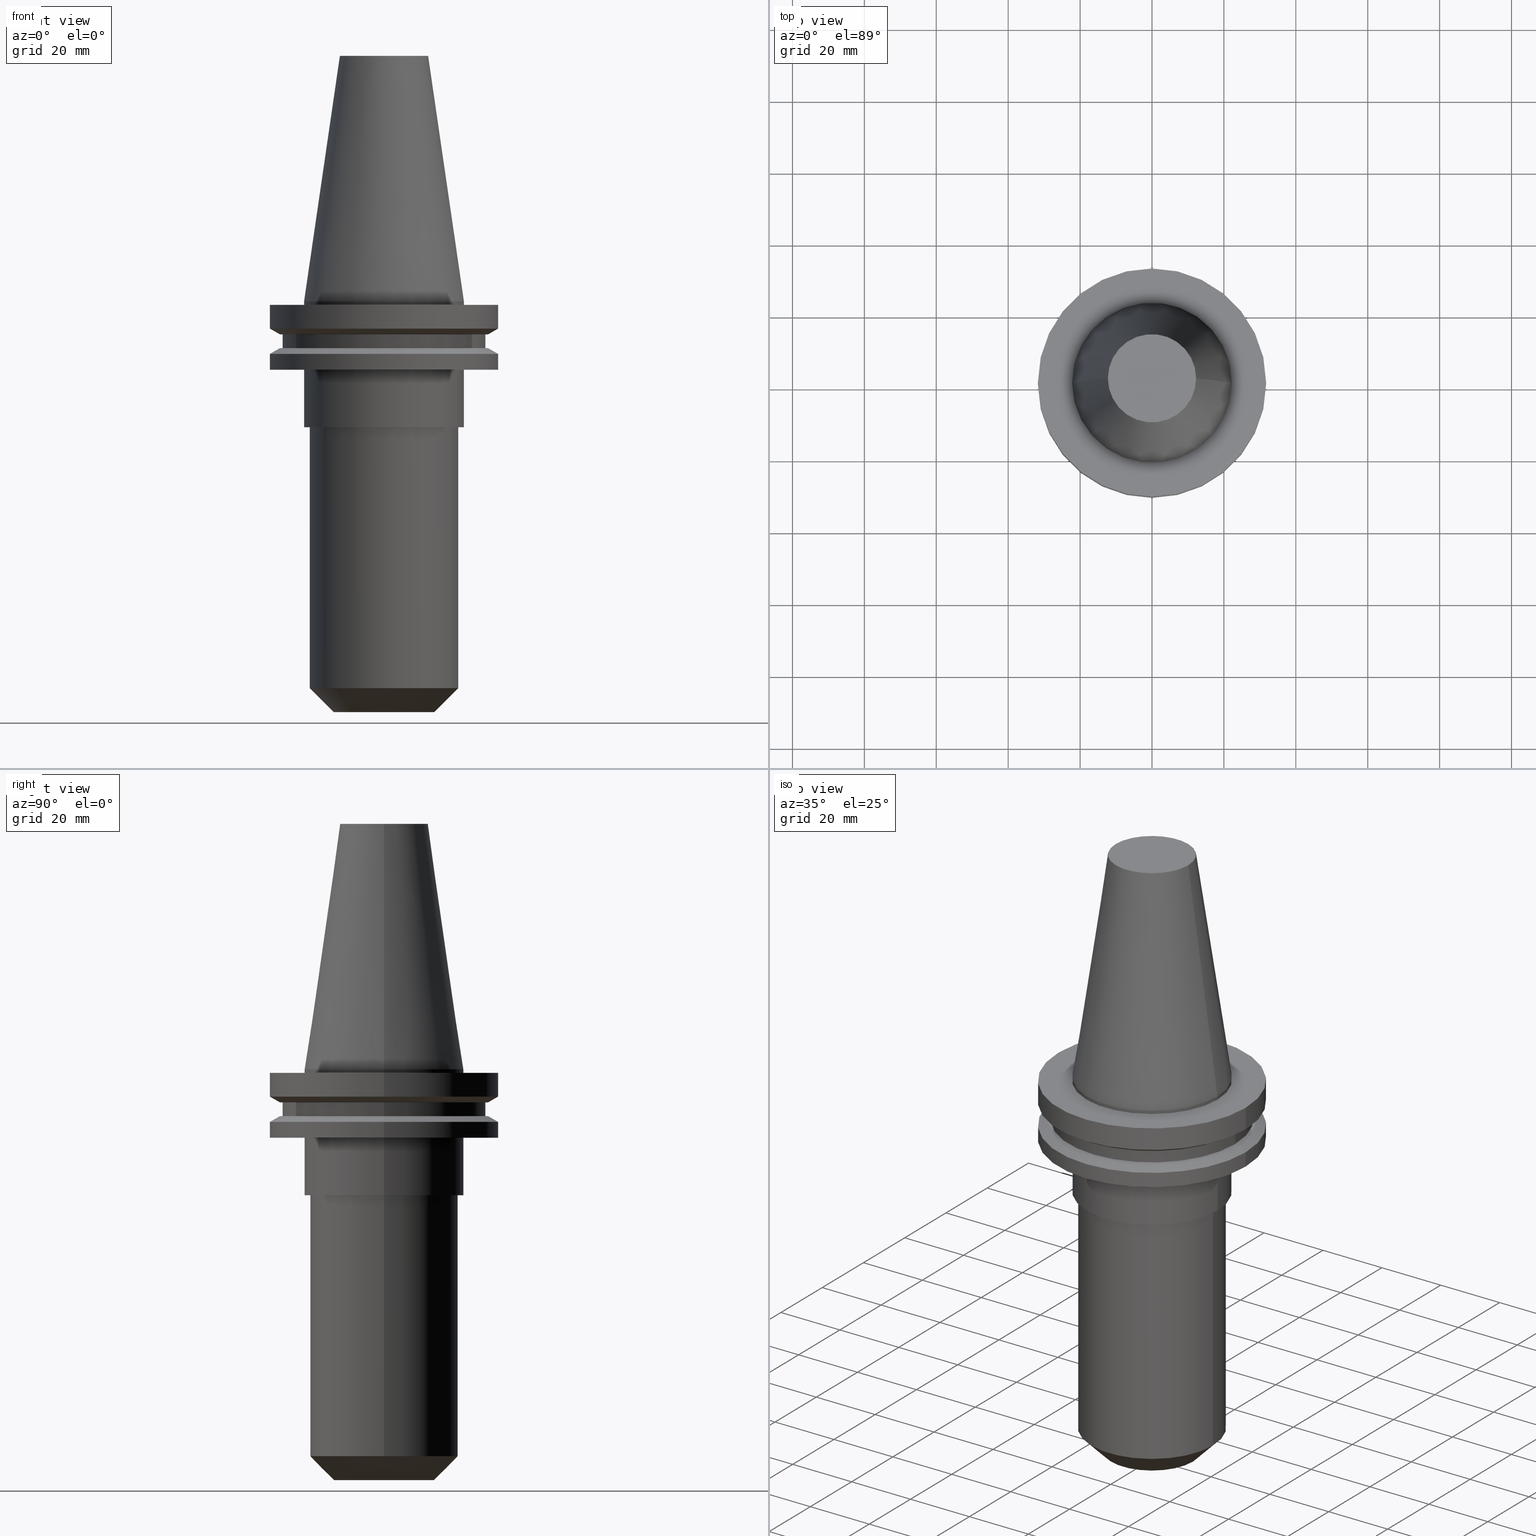
[diagram: canonical four-view strip — front | top / right | iso, engineering-drawing reading convention]
A machine part, canonical four-view strip (front | top / right | iso — engineering-drawing reading convention). The complete STEP part file that produces these views, byte-faithful:
ISO-10303-21;
HEADER;
FILE_DESCRIPTION (( 'STEP AP203' ),
    '1' );
FILE_NAME ('BCV40-EM_625-4_5.STEP',
    '2022-02-23T14:49:10',
    ( '' ),
    ( '' ),
    'SwSTEP 2.0',
    'SolidWorks 2021',
    '' );
FILE_SCHEMA (( 'CONFIG_CONTROL_DESIGN' ));
ENDSEC;

DATA;
#1 = DIRECTION ( 'NONE',  ( 0.000000000000000000, -0.000000000000000000, 1.000000000000000000 ) ) ;
#2 = CARTESIAN_POINT ( 'NONE',  ( 0.000000000000000000, 31.74999999999999289, -19.04999999999999716 ) ) ;
#3 = ORIENTED_EDGE ( 'NONE', *, *, #281, .F. ) ;
#4 = APPROVAL ( #682, 'UNSPECIFIED' ) ;
#5 = CARTESIAN_POINT ( 'NONE',  ( -28.17999999999999972, 3.451054679997241634E-15, 68.25000000000000000 ) ) ;
#6 = ORIENTED_EDGE ( 'NONE', *, *, #163, .T. ) ;
#7 = EDGE_CURVE ( 'NONE', #409, #34, #39, .T. ) ;
#8 = CIRCLE ( 'NONE', #165, 28.17999999999999972 ) ;
#9 = CIRCLE ( 'NONE', #568, 12.27178102086201150 ) ;
#10 = PLANE ( 'NONE',  #322 ) ;
#11 = ORIENTED_EDGE ( 'NONE', *, *, #603, .T. ) ;
#12 = VECTOR ( 'NONE', #33, 999.9999999999998863 ) ;
#13 = ORIENTED_EDGE ( 'NONE', *, *, #573, .F. ) ;
#14 = DIRECTION ( 'NONE',  ( 1.000000000000000000, 0.000000000000000000, 0.000000000000000000 ) ) ;
#15 = EDGE_LOOP ( 'NONE', ( #671, #340, #69, #374 ) ) ;
#16 = SECURITY_CLASSIFICATION_LEVEL ( 'unclassified' ) ;
#17 = EDGE_CURVE ( 'NONE', #758, #222, #126, .T. ) ;
#18 = CARTESIAN_POINT ( 'NONE',  ( 28.97919780457007732, 0.000000000000000000, -9.205000000000005400 ) ) ;
#19 = ORIENTED_EDGE ( 'NONE', *, *, #727, .F. ) ;
#20 = ORIENTED_EDGE ( 'NONE', *, *, #345, .T. ) ;
#21 = LINE ( 'NONE', #239, #385 ) ;
#22 = ORIENTED_EDGE ( 'NONE', *, *, #595, .F. ) ;
#23 = VECTOR ( 'NONE', #351, 1000.000000000000000 ) ;
#24 = PLANE ( 'NONE',  #212 ) ;
#25 = ORIENTED_EDGE ( 'NONE', *, *, #473, .F. ) ;
#26 = VECTOR ( 'NONE', #716, 1000.000000000000000 ) ;
#27 = DATE_AND_TIME ( #66, #805 ) ;
#28 = CARTESIAN_POINT ( 'NONE',  ( 31.74999999999999289, 0.000000000000000000, -19.04999999999999716 ) ) ;
#29 = EDGE_LOOP ( 'NONE', ( #238, #419, #807, #570 ) ) ;
#30 = ADVANCED_FACE ( 'NONE', ( #579 ), #731, .T. ) ;
#31 = DIRECTION ( 'NONE',  ( 1.000000000000000000, 0.000000000000000000, 0.000000000000000000 ) ) ;
#32 = VERTEX_POINT ( 'NONE', #187 ) ;
#33 = DIRECTION ( 'NONE',  ( 0.1443082272672999711, 1.767266086135276757E-17, -0.9895327864921755756 ) ) ;
#34 = VERTEX_POINT ( 'NONE', #451 ) ;
#35 = DIRECTION ( 'NONE',  ( -1.000000000000000000, 0.000000000000000000, -0.000000000000000000 ) ) ;
#36 = DIRECTION ( 'NONE',  ( -0.000000000000000000, -0.000000000000000000, 1.000000000000000000 ) ) ;
#37 = ORIENTED_EDGE ( 'NONE', *, *, #638, .F. ) ;
#38 = FACE_OUTER_BOUND ( 'NONE', #15, .T. ) ;
#39 = CIRCLE ( 'NONE', #498, 12.27178102086201150 ) ;
#40 = CIRCLE ( 'NONE', #526, 22.22500000000000142 ) ;
#41 = CIRCLE ( 'NONE', #501, 22.22500000000000142 ) ;
#42 = ADVANCED_FACE ( 'NONE', ( #782 ), #588, .T. ) ;
#43 = CARTESIAN_POINT ( 'NONE',  ( 31.75000000000000000, 0.000000000000000000, 68.25000000000000000 ) ) ;
#44 = EDGE_LOOP ( 'NONE', ( #11, #803 ) ) ;
#45 = FACE_BOUND ( 'NONE', #699, .T. ) ;
#46 = EDGE_CURVE ( 'NONE', #306, #432, #320, .T. ) ;
#47 = LINE ( 'NONE', #252, #317 ) ;
#48 = DIRECTION ( 'NONE',  ( -0.000000000000000000, -0.000000000000000000, 1.000000000000000000 ) ) ;
#49 = EDGE_CURVE ( 'NONE', #409, #300, #597, .T. ) ;
#50 = DIRECTION ( 'NONE',  ( 1.000000000000000000, 0.000000000000000000, 0.000000000000000000 ) ) ;
#51 = CARTESIAN_POINT ( 'NONE',  ( 0.000000000000000000, 0.000000000000000000, 0.000000000000000000 ) ) ;
#52 = DIRECTION ( 'NONE',  ( -0.1443082272672999711, 0.000000000000000000, -0.9895327864921755756 ) ) ;
#53 = CARTESIAN_POINT ( 'NONE',  ( -12.27178102086201150, 0.000000000000000000, 68.25000000000000000 ) ) ;
#54 = AXIS2_PLACEMENT_3D ( 'NONE', #527, #1, #334 ) ;
#55 = CIRCLE ( 'NONE', #567, 7.939999999999999503 ) ;
#56 = DIRECTION ( 'NONE',  ( -0.000000000000000000, -0.000000000000000000, 1.000000000000000000 ) ) ;
#57 = CARTESIAN_POINT ( 'NONE',  ( 0.000000000000000000, 0.000000000000000000, -13.05499999999999794 ) ) ;
#58 = DIRECTION ( 'NONE',  ( -0.000000000000000000, -0.000000000000000000, 1.000000000000000000 ) ) ;
#59 = EDGE_CURVE ( 'NONE', #766, #439, #444, .T. ) ;
#60 = DIRECTION ( 'NONE',  ( 1.000000000000000000, 0.000000000000000000, 0.000000000000000000 ) ) ;
#61 = FACE_OUTER_BOUND ( 'NONE', #813, .T. ) ;
#62 = EDGE_CURVE ( 'NONE', #475, #642, #55, .T. ) ;
#63 = DIRECTION ( 'NONE',  ( 0.000000000000000000, -0.000000000000000000, 1.000000000000000000 ) ) ;
#64 = CARTESIAN_POINT ( 'NONE',  ( 0.000000000000000000, 0.000000000000000000, 0.000000000000000000 ) ) ;
#65 = AXIS2_PLACEMENT_3D ( 'NONE', #715, #837, #645 ) ;
#66 = CALENDAR_DATE ( 2022, 23, 2 ) ;
#67 = PLANE ( 'NONE',  #54 ) ;
#68 = LINE ( 'NONE', #673, #599 ) ;
#69 = ORIENTED_EDGE ( 'NONE', *, *, #178, .F. ) ;
#70 = EDGE_CURVE ( 'NONE', #230, #169, #776, .T. ) ;
#71 = DIRECTION ( 'NONE',  ( 1.000000000000000000, 0.000000000000000000, 0.000000000000000000 ) ) ;
#72 = EDGE_LOOP ( 'NONE', ( #676, #430, #706, #25 ) ) ;
#73 = ORIENTED_EDGE ( 'NONE', *, *, #329, .T. ) ;
#74 = DIRECTION ( 'NONE',  ( 1.000000000000000000, 0.000000000000000000, 0.000000000000000000 ) ) ;
#75 = ORIENTED_EDGE ( 'NONE', *, *, #114, .F. ) ;
#76 = ORIENTED_EDGE ( 'NONE', *, *, #415, .F. ) ;
#77 = VECTOR ( 'NONE', #52, 999.9999999999998863 ) ;
#78 = VECTOR ( 'NONE', #403, 1000.000000000000000 ) ;
#79 = DIRECTION ( 'NONE',  ( -0.000000000000000000, -0.000000000000000000, 1.000000000000000000 ) ) ;
#80 = AXIS2_PLACEMENT_3D ( 'NONE', #823, #752, #359 ) ;
#81 = ADVANCED_FACE ( 'NONE', ( #771 ), #720, .F. ) ;
#82 = ADVANCED_BREP_SHAPE_REPRESENTATION ( 'BCV40-EM_625-4_5', ( #220, #523 ), #672 ) ;
#83 = FACE_OUTER_BOUND ( 'NONE', #360, .T. ) ;
#84 = ORIENTED_EDGE ( 'NONE', *, *, #801, .F. ) ;
#85 = APPROVAL_DATE_TIME ( #90, #4 ) ;
#86 = PRODUCT_DEFINITION_SHAPE ( 'NONE', 'NONE',  #820 ) ;
#87 = DIRECTION ( 'NONE',  ( -0.000000000000000000, -0.000000000000000000, 1.000000000000000000 ) ) ;
#88 = ORIENTED_EDGE ( 'NONE', *, *, #321, .F. ) ;
#89 = CARTESIAN_POINT ( 'NONE',  ( 0.000000000000000000, 0.000000000000000000, 68.25000000000000000 ) ) ;
#90 = DATE_AND_TIME ( #557, #442 ) ;
#91 = EDGE_CURVE ( 'NONE', #166, #291, #675, .T. ) ;
#92 = DIRECTION ( 'NONE',  ( 1.000000000000000000, 0.000000000000000000, 0.000000000000000000 ) ) ;
#93 = ORIENTED_EDGE ( 'NONE', *, *, #603, .F. ) ;
#94 = AXIS2_PLACEMENT_3D ( 'NONE', #89, #508, #173 ) ;
#95 = CARTESIAN_POINT ( 'NONE',  ( -31.75000000000000000, 3.888253587292846476E-15, 68.25000000000000000 ) ) ;
#96 = ORIENTED_EDGE ( 'NONE', *, *, #533, .F. ) ;
#97 = AXIS2_PLACEMENT_3D ( 'NONE', #693, #357, #31 ) ;
#98 = CARTESIAN_POINT ( 'NONE',  ( 0.000000000000000000, 0.000000000000000000, -9.205000000000005400 ) ) ;
#99 = ORIENTED_EDGE ( 'NONE', *, *, #625, .T. ) ;
#100 = CYLINDRICAL_SURFACE ( 'NONE', #333, 20.63749999999999929 ) ;
#101 = ORIENTED_EDGE ( 'NONE', *, *, #91, .T. ) ;
#102 = CYLINDRICAL_SURFACE ( 'NONE', #342, 28.17999999999999972 ) ;
#103 = ORIENTED_EDGE ( 'NONE', *, *, #91, .F. ) ;
#104 = DIRECTION ( 'NONE',  ( -0.8660254037844389297, 1.060575238724907285E-16, 0.4999999999999995004 ) ) ;
#105 = ORIENTED_EDGE ( 'NONE', *, *, #415, .T. ) ;
#106 = EDGE_CURVE ( 'NONE', #538, #738, #112, .T. ) ;
#107 = CC_DESIGN_APPROVAL ( #848, ( #607 ) ) ;
#108 = DIRECTION ( 'NONE',  ( 1.000000000000000000, 0.000000000000000000, 0.000000000000000000 ) ) ;
#109 = ORIENTED_EDGE ( 'NONE', *, *, #178, .T. ) ;
#110 = DIRECTION ( 'NONE',  ( -0.000000000000000000, -0.000000000000000000, 1.000000000000000000 ) ) ;
#111 = EDGE_LOOP ( 'NONE', ( #175, #75 ) ) ;
#112 = CIRCLE ( 'NONE', #759, 28.97919780457008088 ) ;
#113 = AXIS2_PLACEMENT_3D ( 'NONE', #593, #851, #264 ) ;
#114 = EDGE_CURVE ( 'NONE', #222, #758, #305, .T. ) ;
#115 = APPROVAL_ROLE ( '' ) ;
#116 = ORIENTED_EDGE ( 'NONE', *, *, #736, .F. ) ;
#117 = DIRECTION ( 'NONE',  ( 1.000000000000000000, 0.000000000000000000, 0.000000000000000000 ) ) ;
#118 = EDGE_LOOP ( 'NONE', ( #521, #22 ) ) ;
#119 = CARTESIAN_POINT ( 'NONE',  ( 31.75000000000000000, 0.000000000000000000, 68.25000000000000000 ) ) ;
#120 = DIRECTION ( 'NONE',  ( -1.000000000000000000, 0.000000000000000000, -0.000000000000000000 ) ) ;
#121 = DIRECTION ( 'NONE',  ( 0.000000000000000000, -0.000000000000000000, 1.000000000000000000 ) ) ;
#122 = DIRECTION ( 'NONE',  ( -0.000000000000000000, -0.000000000000000000, 1.000000000000000000 ) ) ;
#123 = DIRECTION ( 'NONE',  ( 1.000000000000000000, 0.000000000000000000, 0.000000000000000000 ) ) ;
#124 = ADVANCED_FACE ( 'NONE', ( #202 ), #462, .T. ) ;
#125 = CARTESIAN_POINT ( 'NONE',  ( -28.17999999999999972, 3.451054679997241634E-15, -13.05499999999999794 ) ) ;
#126 = CIRCLE ( 'NONE', #65, 22.22499999999999787 ) ;
#127 = CIRCLE ( 'NONE', #243, 31.75000000000000000 ) ;
#128 = PRODUCT_RELATED_PRODUCT_CATEGORY ( 'detail', '', ( #493 ) ) ;
#129 =( NAMED_UNIT ( * ) SI_UNIT ( $, .STERADIAN. ) SOLID_ANGLE_UNIT ( ) );
#130 = ORIENTED_EDGE ( 'NONE', *, *, #726, .F. ) ;
#131 = DIRECTION ( 'NONE',  ( 1.000000000000000000, 0.000000000000000000, 0.000000000000000000 ) ) ;
#132 = DIRECTION ( 'NONE',  ( -0.000000000000000000, -0.000000000000000000, 1.000000000000000000 ) ) ;
#133 = DIRECTION ( 'NONE',  ( 1.000000000000000000, 0.000000000000000000, 0.000000000000000000 ) ) ;
#134 = CARTESIAN_POINT ( 'NONE',  ( 22.22500000000000142, 2.721777511104992849E-15, 0.000000000000000000 ) ) ;
#135 = DIRECTION ( 'NONE',  ( 0.000000000000000000, 0.000000000000000000, -1.000000000000000000 ) ) ;
#136 = VECTOR ( 'NONE', #56, 1000.000000000000000 ) ;
#137 = APPROVAL_PERSON_ORGANIZATION ( #687, #848, #804 ) ;
#138 = ADVANCED_FACE ( 'NONE', ( #389 ), #709, .F. ) ;
#139 = CIRCLE ( 'NONE', #368, 22.22500000000000142 ) ;
#140 = ADVANCED_FACE ( 'NONE', ( #267, #790 ), #67, .F. ) ;
#141 = CARTESIAN_POINT ( 'NONE',  ( -7.939999999999999503, 9.723695585229985121E-16, -35.04999999999999716 ) ) ;
#142 = EDGE_LOOP ( 'NONE', ( #793, #20, #491, #733 ) ) ;
#143 = CARTESIAN_POINT ( 'NONE',  ( -20.63749999999999929, 2.527364831740350249E-15, 0.000000000000000000 ) ) ;
#144 = LINE ( 'NONE', #143, #78 ) ;
#145 = CC_DESIGN_DATE_AND_TIME_ASSIGNMENT ( #464, #811, ( #820 ) ) ;
#146 = ORIENTED_EDGE ( 'NONE', *, *, #303, .F. ) ;
#147 = ORGANIZATION ( 'UNSPECIFIED', 'UNSPECIFIED', '' ) ;
#148 = ORIENTED_EDGE ( 'NONE', *, *, #500, .F. ) ;
#149 = AXIS2_PLACEMENT_3D ( 'NONE', #188, #519, #710 ) ;
#150 = DIRECTION ( 'NONE',  ( -1.000000000000000000, 0.000000000000000000, 0.000000000000000000 ) ) ;
#151 = ORIENTED_EDGE ( 'NONE', *, *, #480, .F. ) ;
#152 = AXIS2_PLACEMENT_3D ( 'NONE', #284, #812, #108 ) ;
#153 = EDGE_LOOP ( 'NONE', ( #469, #545 ) ) ;
#154 = CALENDAR_DATE ( 2022, 23, 2 ) ;
#155 = CARTESIAN_POINT ( 'NONE',  ( 7.939999999999999503, 0.000000000000000000, -35.04999999999999716 ) ) ;
#156 = ORIENTED_EDGE ( 'NONE', *, *, #795, .F. ) ;
#157 = DIRECTION ( 'NONE',  ( -0.000000000000000000, -0.000000000000000000, 1.000000000000000000 ) ) ;
#158 = DIRECTION ( 'NONE',  ( 1.000000000000000000, 0.000000000000000000, 0.000000000000000000 ) ) ;
#159 = ORIENTED_EDGE ( 'NONE', *, *, #49, .F. ) ;
#160 = CARTESIAN_POINT ( 'NONE',  ( 28.17999999999999972, 0.000000000000000000, -13.05499999999999794 ) ) ;
#161 = ORIENTED_EDGE ( 'NONE', *, *, #787, .T. ) ;
#162 = AXIS2_PLACEMENT_3D ( 'NONE', #180, #781, #836 ) ;
#163 = EDGE_CURVE ( 'NONE', #704, #575, #744, .T. ) ;
#164 = LINE ( 'NONE', #700, #640 ) ;
#165 = AXIS2_PLACEMENT_3D ( 'NONE', #814, #754, #425 ) ;
#166 = VERTEX_POINT ( 'NONE', #393 ) ;
#167 = AXIS2_PLACEMENT_3D ( 'NONE', #64, #332, #262 ) ;
#168 = DIRECTION ( 'NONE',  ( 1.000000000000000000, 0.000000000000000000, 0.000000000000000000 ) ) ;
#169 = VERTEX_POINT ( 'NONE', #134 ) ;
#170 = AXIS2_PLACEMENT_3D ( 'NONE', #325, #581, #452 ) ;
#171 = CARTESIAN_POINT ( 'NONE',  ( 0.000000000000000000, 0.000000000000000000, -1.000000000000000888 ) ) ;
#172 = ORIENTED_EDGE ( 'NONE', *, *, #657, .F. ) ;
#173 = DIRECTION ( 'NONE',  ( 1.000000000000000000, 0.000000000000000000, 0.000000000000000000 ) ) ;
#174 = DIRECTION ( 'NONE',  ( -0.000000000000000000, -0.000000000000000000, 1.000000000000000000 ) ) ;
#175 = ORIENTED_EDGE ( 'NONE', *, *, #17, .F. ) ;
#176 = EDGE_CURVE ( 'NONE', #414, #439, #662, .T. ) ;
#177 = CARTESIAN_POINT ( 'NONE',  ( -22.22499999999999787, 2.721777511104992454E-15, -35.04999999999999716 ) ) ;
#178 = EDGE_CURVE ( 'NONE', #169, #300, #139, .T. ) ;
#179 = CC_DESIGN_APPROVAL ( #4, ( #196 ) ) ;
#180 = CARTESIAN_POINT ( 'NONE',  ( 0.000000000000000000, 0.000000000000000000, -114.2999999999999972 ) ) ;
#181 = DIRECTION ( 'NONE',  ( 1.000000000000000000, 0.000000000000000000, 0.000000000000000000 ) ) ;
#182 = DIRECTION ( 'NONE',  ( -0.000000000000000000, -0.000000000000000000, 1.000000000000000000 ) ) ;
#183 = VERTEX_POINT ( 'NONE', #301 ) ;
#184 = AXIS2_PLACEMENT_3D ( 'NONE', #381, #524, #786 ) ;
#185 = AXIS2_PLACEMENT_3D ( 'NONE', #214, #799, #474 ) ;
#186 = CARTESIAN_POINT ( 'NONE',  ( 0.000000000000000000, 0.000000000000000000, 68.25000000000000000 ) ) ;
#187 = CARTESIAN_POINT ( 'NONE',  ( -28.17999999999999972, 3.451054679997241634E-15, -9.204999999999991189 ) ) ;
#188 = CARTESIAN_POINT ( 'NONE',  ( 0.000000000000000000, 0.000000000000000000, -14.65472339340266572 ) ) ;
#189 = ADVANCED_FACE ( 'NONE', ( #643 ), #100, .T. ) ;
#190 = CARTESIAN_POINT ( 'NONE',  ( -22.22500000000000142, 2.721777511104992849E-15, 68.25000000000000000 ) ) ;
#191 = DIRECTION ( 'NONE',  ( -0.000000000000000000, -0.000000000000000000, 1.000000000000000000 ) ) ;
#192 = CARTESIAN_POINT ( 'NONE',  ( -31.74999999999999289, 3.888253587292845687E-15, -19.04999999999999716 ) ) ;
#193 = CYLINDRICAL_SURFACE ( 'NONE', #455, 22.22500000000000142 ) ;
#194 = CARTESIAN_POINT ( 'NONE',  ( 0.000000000000000000, 0.000000000000000000, -13.05499999999999794 ) ) ;
#195 = EDGE_CURVE ( 'NONE', #670, #414, #224, .T. ) ;
#196 = SECURITY_CLASSIFICATION ( '', '', #16 ) ;
#197 = CYLINDRICAL_SURFACE ( 'NONE', #623, 22.22500000000000142 ) ;
#198 = VECTOR ( 'NONE', #514, 1000.000000000000000 ) ;
#199 = VECTOR ( 'NONE', #391, 1000.000000000000000 ) ;
#200 = AXIS2_PLACEMENT_3D ( 'NONE', #245, #505, #158 ) ;
#201 = DIRECTION ( 'NONE',  ( -1.000000000000000000, 0.000000000000000000, -0.000000000000000000 ) ) ;
#202 = FACE_OUTER_BOUND ( 'NONE', #211, .T. ) ;
#203 = DIRECTION ( 'NONE',  ( 0.7071067811865479058, 0.000000000000000000, 0.7071067811865471286 ) ) ;
#204 = EDGE_CURVE ( 'NONE', #738, #538, #808, .T. ) ;
#205 = PERSON_AND_ORGANIZATION_ROLE ( 'creator' ) ;
#206 = CARTESIAN_POINT ( 'NONE',  ( 0.000000000000000000, 0.000000000000000000, -9.205000000000005400 ) ) ;
#207 = DIRECTION ( 'NONE',  ( -0.000000000000000000, -0.000000000000000000, 1.000000000000000000 ) ) ;
#208 = EDGE_CURVE ( 'NONE', #575, #232, #487, .T. ) ;
#209 = PERSON_AND_ORGANIZATION ( #547, #147 ) ;
#210 = DIRECTION ( 'NONE',  ( 1.000000000000000000, 0.000000000000000000, 0.000000000000000000 ) ) ;
#211 = EDGE_LOOP ( 'NONE', ( #423, #488, #400, #798 ) ) ;
#212 = AXIS2_PLACEMENT_3D ( 'NONE', #292, #555, #35 ) ;
#213 = AXIS2_PLACEMENT_3D ( 'NONE', #656, #58, #586 ) ;
#214 = CARTESIAN_POINT ( 'NONE',  ( 0.000000000000000000, 0.000000000000000000, -35.04999999999999716 ) ) ;
#215 = ORIENTED_EDGE ( 'NONE', *, *, #106, .F. ) ;
#216 = EDGE_CURVE ( 'NONE', #843, #347, #382, .T. ) ;
#217 = CARTESIAN_POINT ( 'NONE',  ( 0.000000000000000000, 0.000000000000000000, 68.25000000000000000 ) ) ;
#218 = ORIENTED_EDGE ( 'NONE', *, *, #500, .T. ) ;
#219 = CC_DESIGN_PERSON_AND_ORGANIZATION_ASSIGNMENT ( #421, #852, ( #196 ) ) ;
#220 = MANIFOLD_SOLID_BREP ( 'EM', #483 ) ;
#221 = DIRECTION ( 'NONE',  ( -0.000000000000000000, -0.000000000000000000, 1.000000000000000000 ) ) ;
#222 = VERTEX_POINT ( 'NONE', #177 ) ;
#223 = EDGE_CURVE ( 'NONE', #631, #183, #622, .T. ) ;
#224 = CIRCLE ( 'NONE', #663, 31.74999999999999289 ) ;
#225 = AXIS2_PLACEMENT_3D ( 'NONE', #217, #791, #14 ) ;
#226 = DIRECTION ( 'NONE',  ( 1.000000000000000000, 0.000000000000000000, 0.000000000000000000 ) ) ;
#227 = EDGE_LOOP ( 'NONE', ( #172, #404 ) ) ;
#228 = PERSON_AND_ORGANIZATION ( #547, #147 ) ;
#229 = CARTESIAN_POINT ( 'NONE',  ( 20.63749999999999929, 0.000000000000000000, -107.5999999999999943 ) ) ;
#230 = VERTEX_POINT ( 'NONE', #825 ) ;
#231 = LINE ( 'NONE', #95, #840 ) ;
#232 = VERTEX_POINT ( 'NONE', #431 ) ;
#233 = EDGE_CURVE ( 'NONE', #538, #766, #492, .T. ) ;
#234 = DATE_TIME_ROLE ( 'classification_date' ) ;
#235 = DIRECTION ( 'NONE',  ( 1.000000000000000000, 0.000000000000000000, 0.000000000000000000 ) ) ;
#236 = ORIENTED_EDGE ( 'NONE', *, *, #533, .T. ) ;
#237 = PLANE ( 'NONE',  #841 ) ;
#238 = ORIENTED_EDGE ( 'NONE', *, *, #690, .F. ) ;
#239 = CARTESIAN_POINT ( 'NONE',  ( -7.939999999999999503, 9.723695585229985121E-16, 0.000000000000000000 ) ) ;
#240 = ORIENTED_EDGE ( 'NONE', *, *, #625, .F. ) ;
#241 = CIRCLE ( 'NONE', #277, 13.93749999999998046 ) ;
#242 = DIRECTION ( 'NONE',  ( -0.000000000000000000, -0.000000000000000000, 1.000000000000000000 ) ) ;
#243 = AXIS2_PLACEMENT_3D ( 'NONE', #762, #438, #696 ) ;
#244 = EDGE_CURVE ( 'NONE', #232, #681, #255, .T. ) ;
#245 = CARTESIAN_POINT ( 'NONE',  ( 0.000000000000000000, 0.000000000000000000, -35.04999999999999716 ) ) ;
#246 = ORIENTED_EDGE ( 'NONE', *, *, #702, .T. ) ;
#247 = DIRECTION ( 'NONE',  ( 1.000000000000000000, 0.000000000000000000, 0.000000000000000000 ) ) ;
#248 = EDGE_LOOP ( 'NONE', ( #605, #407, #103, #665 ) ) ;
#249 = DIRECTION ( 'NONE',  ( 1.000000000000000000, 0.000000000000000000, 0.000000000000000000 ) ) ;
#250 = ORIENTED_EDGE ( 'NONE', *, *, #838, .F. ) ;
#251 = CARTESIAN_POINT ( 'NONE',  ( 7.939999999999999503, 0.000000000000000000, 0.000000000000000000 ) ) ;
#252 = CARTESIAN_POINT ( 'NONE',  ( 22.22500000000000142, 0.000000000000000000, 68.25000000000000000 ) ) ;
#253 = DIRECTION ( 'NONE',  ( 1.000000000000000000, 0.000000000000000000, 0.000000000000000000 ) ) ;
#254 = DIRECTION ( 'NONE',  ( -0.000000000000000000, -0.000000000000000000, 1.000000000000000000 ) ) ;
#255 = CIRCLE ( 'NONE', #353, 31.75000000000000000 ) ;
#256 = EDGE_CURVE ( 'NONE', #232, #338, #231, .T. ) ;
#257 = CONICAL_SURFACE ( 'NONE', #785, 28.97919780457007732, 1.047197551196598297 ) ;
#258 = ORIENTED_EDGE ( 'NONE', *, *, #480, .T. ) ;
#259 = CARTESIAN_POINT ( 'NONE',  ( -20.63749999999999929, 2.527364831740350249E-15, -35.04999999999999716 ) ) ;
#260 = MECHANICAL_CONTEXT ( 'NONE', #379, 'mechanical' ) ;
#261 = DIRECTION ( 'NONE',  ( 1.000000000000000000, 0.000000000000000000, 0.000000000000000000 ) ) ;
#262 = DIRECTION ( 'NONE',  ( -1.000000000000000000, 0.000000000000000000, 0.000000000000000000 ) ) ;
#263 = CARTESIAN_POINT ( 'NONE',  ( 22.22500000000000142, 0.000000000000000000, 68.25000000000000000 ) ) ;
#264 = DIRECTION ( 'NONE',  ( 1.000000000000000000, 0.000000000000000000, 0.000000000000000000 ) ) ;
#265 = CIRCLE ( 'NONE', #288, 31.74999999999999289 ) ;
#266 = CIRCLE ( 'NONE', #760, 28.17999999999999972 ) ;
#267 = FACE_OUTER_BOUND ( 'NONE', #826, .T. ) ;
#268 = DIRECTION ( 'NONE',  ( -1.000000000000000000, 0.000000000000000000, 0.000000000000000000 ) ) ;
#269 = PERSON_AND_ORGANIZATION_ROLE ( 'creator' ) ;
#270 = DIRECTION ( 'NONE',  ( 1.000000000000000000, 0.000000000000000000, 0.000000000000000000 ) ) ;
#271 = EDGE_LOOP ( 'NONE', ( #148, #73, #324, #692 ) ) ;
#272 = ORIENTED_EDGE ( 'NONE', *, *, #736, .T. ) ;
#273 = CARTESIAN_POINT ( 'NONE',  ( 28.97919780457008088, 3.718590885307660666E-15, -13.05499999999999794 ) ) ;
#274 = ORIENTED_EDGE ( 'NONE', *, *, #233, .T. ) ;
#275 = ADVANCED_FACE ( 'NONE', ( #38 ), #504, .T. ) ;
#276 = AXIS2_PLACEMENT_3D ( 'NONE', #206, #465, #728 ) ;
#277 = AXIS2_PLACEMENT_3D ( 'NONE', #413, #531, #71 ) ;
#278 = AXIS2_PLACEMENT_3D ( 'NONE', #98, #616, #619 ) ;
#279 = DIRECTION ( 'NONE',  ( 0.000000000000000000, -0.000000000000000000, 1.000000000000000000 ) ) ;
#280 = ORIENTED_EDGE ( 'NONE', *, *, #787, .F. ) ;
#281 = EDGE_CURVE ( 'NONE', #32, #336, #470, .T. ) ;
#282 = CARTESIAN_POINT ( 'NONE',  ( 0.000000000000000000, 0.000000000000000000, -19.04999999999999716 ) ) ;
#283 = EDGE_LOOP ( 'NONE', ( #824, #815 ) ) ;
#284 = CARTESIAN_POINT ( 'NONE',  ( 0.000000000000000000, 0.000000000000000000, 0.000000000000000000 ) ) ;
#285 = ORIENTED_EDGE ( 'NONE', *, *, #534, .F. ) ;
#286 = ORIENTED_EDGE ( 'NONE', *, *, #303, .T. ) ;
#287 = AXIS2_PLACEMENT_3D ( 'NONE', #835, #832, #764 ) ;
#288 = AXIS2_PLACEMENT_3D ( 'NONE', #355, #36, #684 ) ;
#289 = DIRECTION ( 'NONE',  ( -0.000000000000000000, -0.000000000000000000, 1.000000000000000000 ) ) ;
#290 = ADVANCED_FACE ( 'NONE', ( #45, #370 ), #24, .F. ) ;
#291 = VERTEX_POINT ( 'NONE', #560 ) ;
#292 = CARTESIAN_POINT ( 'NONE',  ( 0.000000000000000000, 31.75000000000000000, -0.9999999999999995559 ) ) ;
#293 = EDGE_LOOP ( 'NONE', ( #250, #749, #817, #532 ) ) ;
#294 = PERSON_AND_ORGANIZATION ( #547, #147 ) ;
#295 = FACE_OUTER_BOUND ( 'NONE', #753, .T. ) ;
#296 = ORIENTED_EDGE ( 'NONE', *, *, #449, .T. ) ;
#297 = FACE_OUTER_BOUND ( 'NONE', #634, .T. ) ;
#298 = ORIENTED_EDGE ( 'NONE', *, *, #702, .F. ) ;
#299 = CYLINDRICAL_SURFACE ( 'NONE', #80, 7.939999999999999503 ) ;
#300 = VERTEX_POINT ( 'NONE', #627 ) ;
#301 = CARTESIAN_POINT ( 'NONE',  ( -20.63749999999999929, 2.527364831740350249E-15, -107.5999999999999943 ) ) ;
#302 = ORIENTED_EDGE ( 'NONE', *, *, #46, .F. ) ;
#303 = EDGE_CURVE ( 'NONE', #432, #306, #8, .T. ) ;
#304 = CARTESIAN_POINT ( 'NONE',  ( 0.000000000000000000, 0.000000000000000000, -9.204999999999991189 ) ) ;
#305 = CIRCLE ( 'NONE', #784, 22.22499999999999787 ) ;
#306 = VERTEX_POINT ( 'NONE', #160 ) ;
#307 = AXIS2_PLACEMENT_3D ( 'NONE', #468, #544, #337 ) ;
#308 = DIRECTION ( 'NONE',  ( 1.000000000000000000, 0.000000000000000000, 0.000000000000000000 ) ) ;
#309 = CIRCLE ( 'NONE', #460, 7.939999999999999503 ) ;
#310 = APPLICATION_PROTOCOL_DEFINITION ( 'international standard', 'config_control_design', 1994, #712 ) ;
#311 = ORIENTED_EDGE ( 'NONE', *, *, #726, .T. ) ;
#312 = DIRECTION ( 'NONE',  ( 1.000000000000000000, 0.000000000000000000, 0.000000000000000000 ) ) ;
#313 = EDGE_LOOP ( 'NONE', ( #302, #146 ) ) ;
#314 = FACE_BOUND ( 'NONE', #313, .T. ) ;
#315 = DIRECTION ( 'NONE',  ( 1.000000000000000000, 0.000000000000000000, 0.000000000000000000 ) ) ;
#316 = CARTESIAN_POINT ( 'NONE',  ( -31.75000000000000000, 3.888253587292846476E-15, -1.000000000000000888 ) ) ;
#317 = VECTOR ( 'NONE', #775, 1000.000000000000000 ) ;
#318 = DIRECTION ( 'NONE',  ( -0.000000000000000000, -0.000000000000000000, 1.000000000000000000 ) ) ;
#319 = CARTESIAN_POINT ( 'NONE',  ( 28.17999999999999972, 0.000000000000000000, -9.204999999999991189 ) ) ;
#320 = CIRCLE ( 'NONE', #796, 28.17999999999999972 ) ;
#321 = EDGE_CURVE ( 'NONE', #300, #169, #499, .T. ) ;
#322 = AXIS2_PLACEMENT_3D ( 'NONE', #394, #732, #343 ) ;
#323 = DIRECTION ( 'NONE',  ( -0.000000000000000000, -0.000000000000000000, 1.000000000000000000 ) ) ;
#324 = ORIENTED_EDGE ( 'NONE', *, *, #441, .T. ) ;
#325 = CARTESIAN_POINT ( 'NONE',  ( 0.000000000000000000, 0.000000000000000000, 0.000000000000000000 ) ) ;
#326 = CARTESIAN_POINT ( 'NONE',  ( 0.000000000000000000, 0.000000000000000000, -114.3000000000000114 ) ) ;
#327 = FACE_OUTER_BOUND ( 'NONE', #29, .T. ) ;
#328 = ADVANCED_FACE ( 'NONE', ( #297, #818 ), #237, .F. ) ;
#329 = EDGE_CURVE ( 'NONE', #386, #405, #428, .T. ) ;
#330 = CARTESIAN_POINT ( 'NONE',  ( 0.000000000000000000, 0.000000000000000000, -14.65472339340266572 ) ) ;
#331 = APPROVAL_PERSON_ORGANIZATION ( #392, #4, #789 ) ;
#332 = DIRECTION ( 'NONE',  ( 0.000000000000000000, 0.000000000000000000, -1.000000000000000000 ) ) ;
#333 = AXIS2_PLACEMENT_3D ( 'NONE', #757, #707, #767 ) ;
#334 = DIRECTION ( 'NONE',  ( 1.000000000000000000, 0.000000000000000000, 0.000000000000000000 ) ) ;
#335 = FACE_OUTER_BOUND ( 'NONE', #831, .T. ) ;
#336 = VERTEX_POINT ( 'NONE', #319 ) ;
#337 = DIRECTION ( 'NONE',  ( 1.000000000000000000, 0.000000000000000000, 0.000000000000000000 ) ) ;
#338 = VERTEX_POINT ( 'NONE', #316 ) ;
#339 = CARTESIAN_POINT ( 'NONE',  ( 0.000000000000000000, 0.000000000000000000, -1.000000000000000888 ) ) ;
#340 = ORIENTED_EDGE ( 'NONE', *, *, #638, .T. ) ;
#341 = VECTOR ( 'NONE', #802, 1000.000000000000000 ) ;
#342 = AXIS2_PLACEMENT_3D ( 'NONE', #558, #548, #349 ) ;
#343 = DIRECTION ( 'NONE',  ( 1.000000000000000000, 0.000000000000000000, 0.000000000000000000 ) ) ;
#344 = EDGE_LOOP ( 'NONE', ( #448, #258 ) ) ;
#345 = EDGE_CURVE ( 'NONE', #183, #631, #719, .T. ) ;
#346 = DIRECTION ( 'NONE',  ( 1.000000000000000000, 0.000000000000000000, 0.000000000000000000 ) ) ;
#347 = VERTEX_POINT ( 'NONE', #447 ) ;
#348 = ADVANCED_FACE ( 'NONE', ( #772 ), #810, .T. ) ;
#349 = DIRECTION ( 'NONE',  ( 1.000000000000000000, 0.000000000000000000, 0.000000000000000000 ) ) ;
#350 = ORIENTED_EDGE ( 'NONE', *, *, #195, .T. ) ;
#351 = DIRECTION ( 'NONE',  ( 0.8660254037844387076, 1.060575238724906915E-16, -0.4999999999999998890 ) ) ;
#352 = DATE_AND_TIME ( #730, #822 ) ;
#353 = AXIS2_PLACEMENT_3D ( 'NONE', #420, #686, #247 ) ;
#354 = VECTOR ( 'NONE', #604, 1000.000000000000000 ) ;
#355 = CARTESIAN_POINT ( 'NONE',  ( 0.000000000000000000, 0.000000000000000000, -19.04999999999999716 ) ) ;
#356 = EDGE_LOOP ( 'NONE', ( #559, #481 ) ) ;
#357 = DIRECTION ( 'NONE',  ( -0.000000000000000000, -0.000000000000000000, 1.000000000000000000 ) ) ;
#358 = VERTEX_POINT ( 'NONE', #259 ) ;
#359 = DIRECTION ( 'NONE',  ( 1.000000000000000000, 0.000000000000000000, 0.000000000000000000 ) ) ;
#360 = EDGE_LOOP ( 'NONE', ( #741, #399, #161, #19 ) ) ;
#361 = ADVANCED_FACE ( 'NONE', ( #373 ), #384, .T. ) ;
#362 = CARTESIAN_POINT ( 'NONE',  ( 0.000000000000000000, 0.000000000000000000, -114.2999999999999972 ) ) ;
#363 = CARTESIAN_POINT ( 'NONE',  ( 31.75000000000000000, 0.000000000000000000, -1.000000000000000888 ) ) ;
#364 = ORIENTED_EDGE ( 'NONE', *, *, #256, .T. ) ;
#365 = CARTESIAN_POINT ( 'NONE',  ( 0.000000000000000000, 0.000000000000000000, -107.5999999999999943 ) ) ;
#366 = ORIENTED_EDGE ( 'NONE', *, *, #70, .T. ) ;
#367 = CARTESIAN_POINT ( 'NONE',  ( 0.000000000000000000, 0.000000000000000000, -7.605276606597335842 ) ) ;
#368 = AXIS2_PLACEMENT_3D ( 'NONE', #703, #440, #312 ) ;
#369 = ORIENTED_EDGE ( 'NONE', *, *, #233, .F. ) ;
#370 = FACE_OUTER_BOUND ( 'NONE', #44, .T. ) ;
#371 = ADVANCED_FACE ( 'NONE', ( #780 ), #197, .T. ) ;
#372 = DIRECTION ( 'NONE',  ( -0.000000000000000000, -0.000000000000000000, 1.000000000000000000 ) ) ;
#373 = FACE_OUTER_BOUND ( 'NONE', #674, .T. ) ;
#374 = ORIENTED_EDGE ( 'NONE', *, *, #70, .F. ) ;
#375 = EDGE_CURVE ( 'NONE', #439, #766, #745, .T. ) ;
#376 = DIRECTION ( 'NONE',  ( -0.000000000000000000, -0.000000000000000000, 1.000000000000000000 ) ) ;
#377 = ADVANCED_FACE ( 'NONE', ( #387 ), #677, .T. ) ;
#378 = DIRECTION ( 'NONE',  ( -0.000000000000000000, -0.000000000000000000, 1.000000000000000000 ) ) ;
#379 = APPLICATION_CONTEXT ( 'configuration controlled 3d designs of mechanical parts and assemblies' ) ;
#380 = DIRECTION ( 'NONE',  ( -0.000000000000000000, -0.000000000000000000, 1.000000000000000000 ) ) ;
#381 = CARTESIAN_POINT ( 'NONE',  ( 0.000000000000000000, 0.000000000000000000, -19.04999999999999716 ) ) ;
#382 = CIRCLE ( 'NONE', #694, 7.940000000000001279 ) ;
#383 = FACE_OUTER_BOUND ( 'NONE', #503, .T. ) ;
#384 = CONICAL_SURFACE ( 'NONE', #149, 31.75000000000000000, 1.047197551196597853 ) ;
#385 = VECTOR ( 'NONE', #289, 1000.000000000000000 ) ;
#386 = VERTEX_POINT ( 'NONE', #777 ) ;
#387 = FACE_OUTER_BOUND ( 'NONE', #626, .T. ) ;
#388 = CALENDAR_DATE ( 2022, 23, 2 ) ;
#389 = FACE_OUTER_BOUND ( 'NONE', #227, .T. ) ;
#390 = DESIGN_CONTEXT ( 'detailed design', #712, 'design' ) ;
#391 = DIRECTION ( 'NONE',  ( -0.000000000000000000, -0.000000000000000000, 1.000000000000000000 ) ) ;
#392 = PERSON_AND_ORGANIZATION ( #547, #147 ) ;
#393 = CARTESIAN_POINT ( 'NONE',  ( 22.22500000000000142, 0.000000000000000000, -19.04999999999999716 ) ) ;
#394 = CARTESIAN_POINT ( 'NONE',  ( 0.000000000000000000, 22.22499999999999787, -35.04999999999999716 ) ) ;
#395 = ORIENTED_EDGE ( 'NONE', *, *, #657, .T. ) ;
#396 = AXIS2_PLACEMENT_3D ( 'NONE', #365, #110, #748 ) ;
#397 = ADVANCED_FACE ( 'NONE', ( #61 ), #847, .F. ) ;
#398 = FACE_OUTER_BOUND ( 'NONE', #506, .T. ) ;
#399 = ORIENTED_EDGE ( 'NONE', *, *, #244, .T. ) ;
#400 = ORIENTED_EDGE ( 'NONE', *, *, #708, .F. ) ;
#401 = CC_DESIGN_DATE_AND_TIME_ASSIGNMENT ( #416, #234, ( #196 ) ) ;
#402 = CC_DESIGN_PERSON_AND_ORGANIZATION_ASSIGNMENT ( #228, #269, ( #607 ) ) ;
#403 = DIRECTION ( 'NONE',  ( -0.000000000000000000, -0.000000000000000000, 1.000000000000000000 ) ) ;
#404 = ORIENTED_EDGE ( 'NONE', *, *, #62, .F. ) ;
#405 = VERTEX_POINT ( 'NONE', #713 ) ;
#406 = FACE_BOUND ( 'NONE', #478, .T. ) ;
#407 = ORIENTED_EDGE ( 'NONE', *, *, #838, .T. ) ;
#408 = EDGE_CURVE ( 'NONE', #306, #336, #589, .T. ) ;
#409 = VERTEX_POINT ( 'NONE', #53 ) ;
#410 = VECTOR ( 'NONE', #242, 1000.000000000000000 ) ;
#411 = CIRCLE ( 'NONE', #185, 20.63749999999999929 ) ;
#412 = CIRCLE ( 'NONE', #278, 28.97919780457007732 ) ;
#413 = CARTESIAN_POINT ( 'NONE',  ( 0.000000000000000000, 0.000000000000000000, -114.3000000000000114 ) ) ;
#414 = VERTEX_POINT ( 'NONE', #192 ) ;
#415 = EDGE_CURVE ( 'NONE', #738, #439, #454, .T. ) ;
#416 = DATE_AND_TIME ( #154, #594 ) ;
#417 = ADVANCED_FACE ( 'NONE', ( #327 ), #666, .T. ) ;
#418 = CARTESIAN_POINT ( 'NONE',  ( -22.22500000000000142, 2.721777511104992849E-15, -1.000000000000000888 ) ) ;
#419 = ORIENTED_EDGE ( 'NONE', *, *, #7, .F. ) ;
#420 = CARTESIAN_POINT ( 'NONE',  ( 0.000000000000000000, 0.000000000000000000, -7.605276606597335842 ) ) ;
#421 = PERSON_AND_ORGANIZATION ( #547, #147 ) ;
#422 = DIRECTION ( 'NONE',  ( 0.8660254037844389297, 0.000000000000000000, 0.4999999999999995004 ) ) ;
#423 = ORIENTED_EDGE ( 'NONE', *, *, #46, .T. ) ;
#424 = AXIS2_PLACEMENT_3D ( 'NONE', #367, #323, #578 ) ;
#425 = DIRECTION ( 'NONE',  ( 1.000000000000000000, 0.000000000000000000, 0.000000000000000000 ) ) ;
#426 = AXIS2_PLACEMENT_3D ( 'NONE', #330, #318, #181 ) ;
#427 = CC_DESIGN_PERSON_AND_ORGANIZATION_ASSIGNMENT ( #591, #517, ( #493 ) ) ;
#428 = CIRCLE ( 'NONE', #585, 13.93749999999998046 ) ;
#429 = CARTESIAN_POINT ( 'NONE',  ( 22.22500000000000142, 2.721777511104992849E-15, 0.000000000000000000 ) ) ;
#430 = ORIENTED_EDGE ( 'NONE', *, *, #587, .T. ) ;
#431 = CARTESIAN_POINT ( 'NONE',  ( -31.75000000000000000, 3.888253587292846476E-15, -7.605276606597335842 ) ) ;
#432 = VERTEX_POINT ( 'NONE', #125 ) ;
#433 = FACE_OUTER_BOUND ( 'NONE', #566, .T. ) ;
#434 = ORIENTED_EDGE ( 'NONE', *, *, #216, .F. ) ;
#435 = CARTESIAN_POINT ( 'NONE',  ( 0.000000000000000000, 0.000000000000000000, -9.204999999999991189 ) ) ;
#436 = ADVANCED_FACE ( 'NONE', ( #383 ), #653, .T. ) ;
#437 = ORIENTED_EDGE ( 'NONE', *, *, #329, .F. ) ;
#438 = DIRECTION ( 'NONE',  ( -0.000000000000000000, -0.000000000000000000, 1.000000000000000000 ) ) ;
#439 = VERTEX_POINT ( 'NONE', #525 ) ;
#440 = DIRECTION ( 'NONE',  ( -0.000000000000000000, -0.000000000000000000, 1.000000000000000000 ) ) ;
#441 = EDGE_CURVE ( 'NONE', #405, #631, #598, .T. ) ;
#442 = LOCAL_TIME ( 8, 49, 10.00000000000000000, #484 ) ;
#443 = CARTESIAN_POINT ( 'NONE',  ( 0.000000000000000000, 28.17999999999999972, -13.05499999999999794 ) ) ;
#444 = CIRCLE ( 'NONE', #426, 31.75000000000000000 ) ;
#445 = CARTESIAN_POINT ( 'NONE',  ( 0.000000000000000000, 12.27178102086201150, 68.25000000000000000 ) ) ;
#446 = CONICAL_SURFACE ( 'NONE', #734, 31.75000000000000000, 1.047197551196597853 ) ;
#447 = CARTESIAN_POINT ( 'NONE',  ( -7.940000000000001279, 9.723695585229987093E-16, -114.2999999999999972 ) ) ;
#448 = ORIENTED_EDGE ( 'NONE', *, *, #7, .T. ) ;
#449 = EDGE_CURVE ( 'NONE', #843, #642, #463, .T. ) ;
#450 = FACE_OUTER_BOUND ( 'NONE', #248, .T. ) ;
#451 = CARTESIAN_POINT ( 'NONE',  ( 12.27178102086201150, 2.112318622904291439E-15, 68.25000000000000000 ) ) ;
#452 = DIRECTION ( 'NONE',  ( 1.000000000000000000, 0.000000000000000000, 0.000000000000000000 ) ) ;
#453 = DIRECTION ( 'NONE',  ( -0.000000000000000000, -0.000000000000000000, 1.000000000000000000 ) ) ;
#454 = LINE ( 'NONE', #660, #26 ) ;
#455 = AXIS2_PLACEMENT_3D ( 'NONE', #186, #122, #718 ) ;
#456 = CARTESIAN_POINT ( 'NONE',  ( 22.22499999999999787, 0.000000000000000000, -35.04999999999999716 ) ) ;
#457 = DIRECTION ( 'NONE',  ( -0.000000000000000000, -0.000000000000000000, 1.000000000000000000 ) ) ;
#458 = DIRECTION ( 'NONE',  ( -0.000000000000000000, -0.000000000000000000, 1.000000000000000000 ) ) ;
#459 = AXIS2_PLACEMENT_3D ( 'NONE', #282, #221, #346 ) ;
#460 = AXIS2_PLACEMENT_3D ( 'NONE', #816, #174, #502 ) ;
#461 = LINE ( 'NONE', #190, #821 ) ;
#462 = CYLINDRICAL_SURFACE ( 'NONE', #827, 28.17999999999999972 ) ;
#463 = LINE ( 'NONE', #251, #515 ) ;
#464 = DATE_AND_TIME ( #388, #536 ) ;
#465 = DIRECTION ( 'NONE',  ( -0.000000000000000000, -0.000000000000000000, 1.000000000000000000 ) ) ;
#466 = DIRECTION ( 'NONE',  ( 1.000000000000000000, 0.000000000000000000, 0.000000000000000000 ) ) ;
#467 = COORDINATED_UNIVERSAL_TIME_OFFSET ( 6, 0, .BEHIND. ) ;
#468 = CARTESIAN_POINT ( 'NONE',  ( 0.000000000000000000, 0.000000000000000000, 68.25000000000000000 ) ) ;
#469 = ORIENTED_EDGE ( 'NONE', *, *, #216, .T. ) ;
#470 = CIRCLE ( 'NONE', #583, 28.17999999999999972 ) ;
#471 = AXIS2_PLACEMENT_3D ( 'NONE', #516, #378, #50 ) ;
#472 = ADVANCED_FACE ( 'NONE', ( #335 ), #540, .T. ) ;
#473 = EDGE_CURVE ( 'NONE', #631, #740, #68, .T. ) ;
#474 = DIRECTION ( 'NONE',  ( 1.000000000000000000, 0.000000000000000000, 0.000000000000000000 ) ) ;
#475 = VERTEX_POINT ( 'NONE', #141 ) ;
#476 = CYLINDRICAL_SURFACE ( 'NONE', #307, 31.75000000000000000 ) ;
#477 = ORIENTED_EDGE ( 'NONE', *, *, #449, .F. ) ;
#478 = EDGE_LOOP ( 'NONE', ( #735, #13 ) ) ;
#479 = FACE_BOUND ( 'NONE', #495, .T. ) ;
#480 = EDGE_CURVE ( 'NONE', #34, #409, #9, .T. ) ;
#481 = ORIENTED_EDGE ( 'NONE', *, *, #106, .T. ) ;
#482 = ADVANCED_FACE ( 'NONE', ( #83 ), #608, .T. ) ;
#483 = CLOSED_SHELL ( 'NONE', ( #348, #397, #189, #275, #628, #377, #124, #361, #507, #809, #472, #520, #417, #81, #42, #529, #436, #543, #751, #688, #328, #554, #482, #290, #371, #648, #683, #140, #30, #138 ) ) ;
#484 = COORDINATED_UNIVERSAL_TIME_OFFSET ( 6, 0, .BEHIND. ) ;
#485 = AXIS2_PLACEMENT_3D ( 'NONE', #792, #135, #268 ) ;
#486 = FACE_OUTER_BOUND ( 'NONE', #142, .T. ) ;
#487 = LINE ( 'NONE', #564, #773 ) ;
#488 = ORIENTED_EDGE ( 'NONE', *, *, #534, .T. ) ;
#489 = COORDINATED_UNIVERSAL_TIME_OFFSET ( 6, 0, .BEHIND. ) ;
#490 = DIRECTION ( 'NONE',  ( 1.000000000000000000, 0.000000000000000000, 0.000000000000000000 ) ) ;
#491 = ORIENTED_EDGE ( 'NONE', *, *, #473, .T. ) ;
#492 = LINE ( 'NONE', #571, #23 ) ;
#493 = PRODUCT ( 'BCV40-EM_625-4_5', 'BCV40-EM_625-4_5', '', ( #260 ) ) ;
#494 = CARTESIAN_POINT ( 'NONE',  ( 31.75000000000000000, 0.000000000000000000, -7.605276606597335842 ) ) ;
#495 = EDGE_LOOP ( 'NONE', ( #101, #542 ) ) ;
#496 = CARTESIAN_POINT ( 'NONE',  ( 0.000000000000000000, 0.000000000000000000, -19.04999999999999716 ) ) ;
#497 = ORIENTED_EDGE ( 'NONE', *, *, #176, .F. ) ;
#498 = AXIS2_PLACEMENT_3D ( 'NONE', #518, #453, #850 ) ;
#499 = CIRCLE ( 'NONE', #97, 22.22500000000000142 ) ;
#500 = EDGE_CURVE ( 'NONE', #386, #183, #541, .T. ) ;
#501 = AXIS2_PLACEMENT_3D ( 'NONE', #171, #569, #226 ) ;
#502 = DIRECTION ( 'NONE',  ( 1.000000000000000000, 0.000000000000000000, 0.000000000000000000 ) ) ;
#503 = EDGE_LOOP ( 'NONE', ( #497, #602, #697, #572 ) ) ;
#504 = CYLINDRICAL_SURFACE ( 'NONE', #94, 22.22500000000000142 ) ;
#505 = DIRECTION ( 'NONE',  ( 0.000000000000000000, 0.000000000000000000, -1.000000000000000000 ) ) ;
#506 = EDGE_LOOP ( 'NONE', ( #350, #577, #800, #834 ) ) ;
#507 = ADVANCED_FACE ( 'NONE', ( #398 ), #476, .T. ) ;
#508 = DIRECTION ( 'NONE',  ( -0.000000000000000000, -0.000000000000000000, 1.000000000000000000 ) ) ;
#509 = EDGE_LOOP ( 'NONE', ( #620, #246, #272, #556 ) ) ;
#510 = PLANE ( 'NONE',  #689 ) ;
#511 = ORIENTED_EDGE ( 'NONE', *, *, #375, .T. ) ;
#512 = DIRECTION ( 'NONE',  ( -0.000000000000000000, -0.000000000000000000, 1.000000000000000000 ) ) ;
#513 = CARTESIAN_POINT ( 'NONE',  ( 31.75000000000000000, 0.000000000000000000, -14.65472339340266572 ) ) ;
#514 = DIRECTION ( 'NONE',  ( -0.000000000000000000, -0.000000000000000000, 1.000000000000000000 ) ) ;
#515 = VECTOR ( 'NONE', #512, 1000.000000000000000 ) ;
#516 = CARTESIAN_POINT ( 'NONE',  ( 0.000000000000000000, 0.000000000000000000, -9.205000000000005400 ) ) ;
#517 = PERSON_AND_ORGANIZATION_ROLE ( 'design_owner' ) ;
#518 = CARTESIAN_POINT ( 'NONE',  ( 0.000000000000000000, 0.000000000000000000, 68.25000000000000000 ) ) ;
#519 = DIRECTION ( 'NONE',  ( 0.000000000000000000, 0.000000000000000000, -1.000000000000000000 ) ) ;
#520 = ADVANCED_FACE ( 'NONE', ( #667, #406 ), #10, .F. ) ;
#521 = ORIENTED_EDGE ( 'NONE', *, *, #195, .F. ) ;
#522 = CARTESIAN_POINT ( 'NONE',  ( 0.000000000000000000, 0.000000000000000000, -114.3000000000000114 ) ) ;
#523 = AXIS2_PLACEMENT_3D ( 'NONE', #51, #582, #249 ) ;
#524 = DIRECTION ( 'NONE',  ( -0.000000000000000000, -0.000000000000000000, 1.000000000000000000 ) ) ;
#525 = CARTESIAN_POINT ( 'NONE',  ( -31.75000000000000000, 3.888253587292846476E-15, -14.65472339340266572 ) ) ;
#526 = AXIS2_PLACEMENT_3D ( 'NONE', #339, #669, #74 ) ;
#527 = CARTESIAN_POINT ( 'NONE',  ( 0.000000000000000000, 7.940000000000001279, -114.3000000000000114 ) ) ;
#528 = CARTESIAN_POINT ( 'NONE',  ( 0.000000000000000000, 0.000000000000000000, 68.25000000000000000 ) ) ;
#529 = ADVANCED_FACE ( 'NONE', ( #664, #479 ), #729, .F. ) ;
#530 = COORDINATED_UNIVERSAL_TIME_OFFSET ( 6, 0, .BEHIND. ) ;
#531 = DIRECTION ( 'NONE',  ( -0.000000000000000000, -0.000000000000000000, 1.000000000000000000 ) ) ;
#532 = ORIENTED_EDGE ( 'NONE', *, *, #549, .F. ) ;
#533 = EDGE_CURVE ( 'NONE', #405, #386, #241, .T. ) ;
#534 = EDGE_CURVE ( 'NONE', #432, #32, #739, .T. ) ;
#535 = CIRCLE ( 'NONE', #162, 7.940000000000001279 ) ;
#536 = LOCAL_TIME ( 8, 49, 10.00000000000000000, #530 ) ;
#537 = FACE_OUTER_BOUND ( 'NONE', #763, .T. ) ;
#538 = VERTEX_POINT ( 'NONE', #273 ) ;
#539 = AXIS2_PLACEMENT_3D ( 'NONE', #659, #63, #854 ) ;
#540 = CONICAL_SURFACE ( 'NONE', #485, 22.22500000000000142, 0.1448138465474119174 ) ;
#541 = LINE ( 'NONE', #601, #354 ) ;
#542 = ORIENTED_EDGE ( 'NONE', *, *, #549, .T. ) ;
#543 = ADVANCED_FACE ( 'NONE', ( #537 ), #446, .T. ) ;
#544 = DIRECTION ( 'NONE',  ( -0.000000000000000000, -0.000000000000000000, 1.000000000000000000 ) ) ;
#545 = ORIENTED_EDGE ( 'NONE', *, *, #801, .T. ) ;
#546 = EDGE_LOOP ( 'NONE', ( #37, #99, #366, #88 ) ) ;
#547 = PERSON ( 'UNSPECIFIED', 'UNSPECIFIED', 'UNSPECIFIED', ('UNSPECIFIED'), ('UNSPECIFIED'), ('UNSPECIFIED') ) ;
#548 = DIRECTION ( 'NONE',  ( -0.000000000000000000, -0.000000000000000000, 1.000000000000000000 ) ) ;
#549 = EDGE_CURVE ( 'NONE', #291, #166, #828, .T. ) ;
#550 = AXIS2_PLACEMENT_3D ( 'NONE', #326, #376, #123 ) ;
#551 = APPROVAL_STATUS ( 'not_yet_approved' ) ;
#552 = DIRECTION ( 'NONE',  ( -0.000000000000000000, -0.000000000000000000, 1.000000000000000000 ) ) ;
#553 = ORIENTED_EDGE ( 'NONE', *, *, #204, .F. ) ;
#554 = ADVANCED_FACE ( 'NONE', ( #797 ), #257, .T. ) ;
#555 = DIRECTION ( 'NONE',  ( 0.000000000000000000, 0.000000000000000000, -1.000000000000000000 ) ) ;
#556 = ORIENTED_EDGE ( 'NONE', *, *, #244, .F. ) ;
#557 = CALENDAR_DATE ( 2022, 23, 2 ) ;
#558 = CARTESIAN_POINT ( 'NONE',  ( 0.000000000000000000, 0.000000000000000000, 68.25000000000000000 ) ) ;
#559 = ORIENTED_EDGE ( 'NONE', *, *, #204, .T. ) ;
#560 = CARTESIAN_POINT ( 'NONE',  ( -22.22500000000000142, 2.721777511104992849E-15, -19.04999999999999716 ) ) ;
#561 = ORIENTED_EDGE ( 'NONE', *, *, #59, .T. ) ;
#562 = CARTESIAN_POINT ( 'NONE',  ( -28.97919780457008088, 0.000000000000000000, -13.05499999999999794 ) ) ;
#563 = ORIENTED_EDGE ( 'NONE', *, *, #163, .F. ) ;
#564 = CARTESIAN_POINT ( 'NONE',  ( -28.97919780457007732, 3.548928183322474856E-15, -9.205000000000005400 ) ) ;
#565 = CC_DESIGN_APPROVAL ( #761, ( #820 ) ) ;
#566 = EDGE_LOOP ( 'NONE', ( #130, #434, #296, #395 ) ) ;
#567 = AXIS2_PLACEMENT_3D ( 'NONE', #584, #457, #315 ) ;
#568 = AXIS2_PLACEMENT_3D ( 'NONE', #528, #79, #210 ) ;
#569 = DIRECTION ( 'NONE',  ( -0.000000000000000000, -0.000000000000000000, 1.000000000000000000 ) ) ;
#570 = ORIENTED_EDGE ( 'NONE', *, *, #321, .T. ) ;
#571 = CARTESIAN_POINT ( 'NONE',  ( 31.75000000000000000, 3.888253587292846476E-15, -14.65472339340266572 ) ) ;
#572 = ORIENTED_EDGE ( 'NONE', *, *, #375, .F. ) ;
#573 = EDGE_CURVE ( 'NONE', #358, #740, #411, .T. ) ;
#574 = CARTESIAN_POINT ( 'NONE',  ( 7.940000000000001279, 0.000000000000000000, -114.2999999999999972 ) ) ;
#575 = VERTEX_POINT ( 'NONE', #737 ) ;
#576 = DIRECTION ( 'NONE',  ( 1.000000000000000000, 0.000000000000000000, 0.000000000000000000 ) ) ;
#577 = ORIENTED_EDGE ( 'NONE', *, *, #176, .T. ) ;
#578 = DIRECTION ( 'NONE',  ( 1.000000000000000000, 0.000000000000000000, 0.000000000000000000 ) ) ;
#579 = FACE_OUTER_BOUND ( 'NONE', #271, .T. ) ;
#580 = UNCERTAINTY_MEASURE_WITH_UNIT (LENGTH_MEASURE( 1.000000000000000082E-05 ), #650, 'distance_accuracy_value', 'NONE');
#581 = DIRECTION ( 'NONE',  ( -0.000000000000000000, -0.000000000000000000, 1.000000000000000000 ) ) ;
#582 = DIRECTION ( 'NONE',  ( 0.000000000000000000, 0.000000000000000000, 1.000000000000000000 ) ) ;
#583 = AXIS2_PLACEMENT_3D ( 'NONE', #435, #621, #308 ) ;
#584 = CARTESIAN_POINT ( 'NONE',  ( 0.000000000000000000, 0.000000000000000000, -35.04999999999999716 ) ) ;
#585 = AXIS2_PLACEMENT_3D ( 'NONE', #783, #182, #844 ) ;
#586 = DIRECTION ( 'NONE',  ( 1.000000000000000000, 0.000000000000000000, 0.000000000000000000 ) ) ;
#587 = EDGE_CURVE ( 'NONE', #183, #358, #144, .T. ) ;
#588 = CYLINDRICAL_SURFACE ( 'NONE', #717, 22.22500000000000142 ) ;
#589 = LINE ( 'NONE', #649, #199 ) ;
#590 = EDGE_CURVE ( 'NONE', #230, #609, #40, .T. ) ;
#591 = PERSON_AND_ORGANIZATION ( #547, #147 ) ;
#592 = CARTESIAN_POINT ( 'NONE',  ( 0.000000000000000000, 0.000000000000000000, 68.25000000000000000 ) ) ;
#593 = CARTESIAN_POINT ( 'NONE',  ( 0.000000000000000000, 0.000000000000000000, 68.25000000000000000 ) ) ;
#594 = LOCAL_TIME ( 8, 49, 10.00000000000000000, #489 ) ;
#595 = EDGE_CURVE ( 'NONE', #414, #670, #265, .T. ) ;
#596 = SHAPE_DEFINITION_REPRESENTATION ( #86, #82 ) ;
#597 = LINE ( 'NONE', #647, #77 ) ;
#598 = LINE ( 'NONE', #788, #853 ) ;
#599 = VECTOR ( 'NONE', #680, 1000.000000000000000 ) ;
#600 = CARTESIAN_POINT ( 'NONE',  ( -31.75000000000000000, 3.888253587292846476E-15, 68.25000000000000000 ) ) ;
#601 = CARTESIAN_POINT ( 'NONE',  ( -13.93749999999998046, 1.706851476311621325E-15, -114.3000000000000114 ) ) ;
#602 = ORIENTED_EDGE ( 'NONE', *, *, #595, .T. ) ;
#603 = EDGE_CURVE ( 'NONE', #701, #338, #774, .T. ) ;
#604 = DIRECTION ( 'NONE',  ( -0.7071067811865479058, 8.659560562354937789E-17, 0.7071067811865471286 ) ) ;
#605 = ORIENTED_EDGE ( 'NONE', *, *, #17, .T. ) ;
#606 = VECTOR ( 'NONE', #380, 1000.000000000000000 ) ;
#607 = PRODUCT_DEFINITION_FORMATION_WITH_SPECIFIED_SOURCE ( 'ANY', '', #493, .NOT_KNOWN. ) ;
#608 = CYLINDRICAL_SURFACE ( 'NONE', #225, 31.75000000000000000 ) ;
#609 = VERTEX_POINT ( 'NONE', #418 ) ;
#610 = EDGE_LOOP ( 'NONE', ( #236, #218, #685, #617 ) ) ;
#611 = AXIS2_PLACEMENT_3D ( 'NONE', #522, #725, #133 ) ;
#612 = CC_DESIGN_PERSON_AND_ORGANIZATION_ASSIGNMENT ( #209, #205, ( #820 ) ) ;
#613 = CIRCLE ( 'NONE', #200, 20.63749999999999929 ) ;
#614 = CARTESIAN_POINT ( 'NONE',  ( 0.000000000000000000, 0.000000000000000000, -14.65472339340266572 ) ) ;
#615 = EDGE_CURVE ( 'NONE', #740, #358, #613, .T. ) ;
#616 = DIRECTION ( 'NONE',  ( -0.000000000000000000, -0.000000000000000000, 1.000000000000000000 ) ) ;
#617 = ORIENTED_EDGE ( 'NONE', *, *, #441, .F. ) ;
#618 = ORIENTED_EDGE ( 'NONE', *, *, #408, .T. ) ;
#619 = DIRECTION ( 'NONE',  ( 1.000000000000000000, 0.000000000000000000, 0.000000000000000000 ) ) ;
#620 = ORIENTED_EDGE ( 'NONE', *, *, #208, .F. ) ;
#621 = DIRECTION ( 'NONE',  ( -0.000000000000000000, -0.000000000000000000, 1.000000000000000000 ) ) ;
#622 = CIRCLE ( 'NONE', #396, 20.63749999999999929 ) ;
#623 = AXIS2_PLACEMENT_3D ( 'NONE', #839, #458, #722 ) ;
#624 = FACE_OUTER_BOUND ( 'NONE', #668, .T. ) ;
#625 = EDGE_CURVE ( 'NONE', #609, #230, #41, .T. ) ;
#626 = EDGE_LOOP ( 'NONE', ( #6, #743, #156, #116 ) ) ;
#627 = CARTESIAN_POINT ( 'NONE',  ( -22.22500000000000142, 0.000000000000000000, 0.000000000000000000 ) ) ;
#628 = ADVANCED_FACE ( 'NONE', ( #624 ), #765, .T. ) ;
#629 = ORIENTED_EDGE ( 'NONE', *, *, #62, .T. ) ;
#630 = LINE ( 'NONE', #18, #721 ) ;
#631 = VERTEX_POINT ( 'NONE', #229 ) ;
#632 = DIRECTION ( 'NONE',  ( -0.000000000000000000, -0.000000000000000000, 1.000000000000000000 ) ) ;
#633 = CARTESIAN_POINT ( 'NONE',  ( 28.97919780457007732, 0.000000000000000000, -9.205000000000005400 ) ) ;
#634 = EDGE_LOOP ( 'NONE', ( #563, #298 ) ) ;
#635 = APPROVAL_PERSON_ORGANIZATION ( #833, #761, #115 ) ;
#636 = DIRECTION ( 'NONE',  ( -0.000000000000000000, -0.000000000000000000, 1.000000000000000000 ) ) ;
#637 = AXIS2_PLACEMENT_3D ( 'NONE', #445, #655, #120 ) ;
#638 = EDGE_CURVE ( 'NONE', #609, #300, #164, .T. ) ;
#639 = AXIS2_PLACEMENT_3D ( 'NONE', #747, #87, #235 ) ;
#640 = VECTOR ( 'NONE', #552, 1000.000000000000000 ) ;
#641 = APPLICATION_PROTOCOL_DEFINITION ( 'international standard', 'config_control_design', 1994, #379 ) ;
#642 = VERTEX_POINT ( 'NONE', #155 ) ;
#643 = FACE_OUTER_BOUND ( 'NONE', #72, .T. ) ;
#644 = COORDINATED_UNIVERSAL_TIME_OFFSET ( 6, 0, .BEHIND. ) ;
#645 = DIRECTION ( 'NONE',  ( 1.000000000000000000, 0.000000000000000000, 0.000000000000000000 ) ) ;
#646 = CARTESIAN_POINT ( 'NONE',  ( 0.000000000000000000, 0.000000000000000000, -14.65472339340266572 ) ) ;
#647 = CARTESIAN_POINT ( 'NONE',  ( -22.22500000000000142, 0.000000000000000000, 0.000000000000000000 ) ) ;
#648 = ADVANCED_FACE ( 'NONE', ( #486 ), #705, .T. ) ;
#649 = CARTESIAN_POINT ( 'NONE',  ( 28.17999999999999972, 0.000000000000000000, 68.25000000000000000 ) ) ;
#650 =( LENGTH_UNIT ( ) NAMED_UNIT ( * ) SI_UNIT ( .MILLI., .METRE. ) );
#651 = AXIS2_PLACEMENT_3D ( 'NONE', #2, #279, #270 ) ;
#652 = DIRECTION ( 'NONE',  ( 1.000000000000000000, 0.000000000000000000, 0.000000000000000000 ) ) ;
#653 = CYLINDRICAL_SURFACE ( 'NONE', #113, 31.75000000000000000 ) ;
#654 = CARTESIAN_POINT ( 'NONE',  ( 20.63749999999999929, 0.000000000000000000, -35.04999999999999716 ) ) ;
#655 = DIRECTION ( 'NONE',  ( 0.000000000000000000, 0.000000000000000000, -1.000000000000000000 ) ) ;
#656 = CARTESIAN_POINT ( 'NONE',  ( 0.000000000000000000, 0.000000000000000000, -107.5999999999999943 ) ) ;
#657 = EDGE_CURVE ( 'NONE', #642, #475, #309, .T. ) ;
#658 = PERSON_AND_ORGANIZATION_ROLE ( 'design_supplier' ) ;
#659 = CARTESIAN_POINT ( 'NONE',  ( 0.000000000000000000, 22.22499999999999787, -35.04999999999999716 ) ) ;
#660 = CARTESIAN_POINT ( 'NONE',  ( -31.75000000000000000, 0.000000000000000000, -14.65472339340266572 ) ) ;
#661 = CC_DESIGN_SECURITY_CLASSIFICATION ( #196, ( #607 ) ) ;
#662 = LINE ( 'NONE', #600, #410 ) ;
#663 = AXIS2_PLACEMENT_3D ( 'NONE', #496, #157, #576 ) ;
#664 = FACE_OUTER_BOUND ( 'NONE', #118, .T. ) ;
#665 = ORIENTED_EDGE ( 'NONE', *, *, #768, .F. ) ;
#666 = CONICAL_SURFACE ( 'NONE', #167, 22.22500000000000142, 0.1448138465474119174 ) ;
#667 = FACE_OUTER_BOUND ( 'NONE', #111, .T. ) ;
#668 = EDGE_LOOP ( 'NONE', ( #819, #364, #93, #280 ) ) ;
#669 = DIRECTION ( 'NONE',  ( -0.000000000000000000, -0.000000000000000000, 1.000000000000000000 ) ) ;
#670 = VERTEX_POINT ( 'NONE', #28 ) ;
#671 = ORIENTED_EDGE ( 'NONE', *, *, #590, .T. ) ;
#672 =( GEOMETRIC_REPRESENTATION_CONTEXT ( 3 ) GLOBAL_UNCERTAINTY_ASSIGNED_CONTEXT ( ( #580 ) ) GLOBAL_UNIT_ASSIGNED_CONTEXT ( ( #650, #723, #129 ) ) REPRESENTATION_CONTEXT ( 'NONE', 'WORKASPACE' ) );
#673 = CARTESIAN_POINT ( 'NONE',  ( 20.63749999999999929, 0.000000000000000000, 0.000000000000000000 ) ) ;
#674 = EDGE_LOOP ( 'NONE', ( #215, #274, #561, #76 ) ) ;
#675 = CIRCLE ( 'NONE', #184, 22.22500000000000142 ) ;
#676 = ORIENTED_EDGE ( 'NONE', *, *, #223, .T. ) ;
#677 = CONICAL_SURFACE ( 'NONE', #471, 28.97919780457007732, 1.047197551196598297 ) ;
#678 = AXIS2_PLACEMENT_3D ( 'NONE', #691, #806, #92 ) ;
#679 = APPROVAL_DATE_TIME ( #352, #848 ) ;
#680 = DIRECTION ( 'NONE',  ( -0.000000000000000000, -0.000000000000000000, 1.000000000000000000 ) ) ;
#681 = VERTEX_POINT ( 'NONE', #494 ) ;
#682 = APPROVAL_STATUS ( 'not_yet_approved' ) ;
#683 = ADVANCED_FACE ( 'NONE', ( #433 ), #299, .F. ) ;
#684 = DIRECTION ( 'NONE',  ( 1.000000000000000000, 0.000000000000000000, 0.000000000000000000 ) ) ;
#685 = ORIENTED_EDGE ( 'NONE', *, *, #223, .F. ) ;
#686 = DIRECTION ( 'NONE',  ( -0.000000000000000000, -0.000000000000000000, 1.000000000000000000 ) ) ;
#687 = PERSON_AND_ORGANIZATION ( #547, #147 ) ;
#688 = ADVANCED_FACE ( 'NONE', ( #295 ), #102, .T. ) ;
#689 = AXIS2_PLACEMENT_3D ( 'NONE', #443, #842, #201 ) ;
#690 = EDGE_CURVE ( 'NONE', #34, #169, #755, .T. ) ;
#691 = CARTESIAN_POINT ( 'NONE',  ( 0.000000000000000000, 0.000000000000000000, 68.25000000000000000 ) ) ;
#692 = ORIENTED_EDGE ( 'NONE', *, *, #345, .F. ) ;
#693 = CARTESIAN_POINT ( 'NONE',  ( 0.000000000000000000, 0.000000000000000000, 0.000000000000000000 ) ) ;
#694 = AXIS2_PLACEMENT_3D ( 'NONE', #362, #632, #168 ) ;
#695 = AXIS2_PLACEMENT_3D ( 'NONE', #646, #254, #131 ) ;
#696 = DIRECTION ( 'NONE',  ( 1.000000000000000000, 0.000000000000000000, 0.000000000000000000 ) ) ;
#697 = ORIENTED_EDGE ( 'NONE', *, *, #750, .T. ) ;
#698 = CARTESIAN_POINT ( 'NONE',  ( 0.000000000000000000, 28.97919780457007732, -9.204999999999996518 ) ) ;
#699 = EDGE_LOOP ( 'NONE', ( #769, #240 ) ) ;
#700 = CARTESIAN_POINT ( 'NONE',  ( -22.22500000000000142, 2.721777511104992849E-15, 68.25000000000000000 ) ) ;
#701 = VERTEX_POINT ( 'NONE', #363 ) ;
#702 = EDGE_CURVE ( 'NONE', #575, #704, #412, .T. ) ;
#703 = CARTESIAN_POINT ( 'NONE',  ( 0.000000000000000000, 0.000000000000000000, 0.000000000000000000 ) ) ;
#704 = VERTEX_POINT ( 'NONE', #633 ) ;
#705 = CYLINDRICAL_SURFACE ( 'NONE', #152, 20.63749999999999929 ) ;
#706 = ORIENTED_EDGE ( 'NONE', *, *, #573, .T. ) ;
#707 = DIRECTION ( 'NONE',  ( -0.000000000000000000, -0.000000000000000000, 1.000000000000000000 ) ) ;
#708 = EDGE_CURVE ( 'NONE', #336, #32, #266, .T. ) ;
#709 = PLANE ( 'NONE',  #539 ) ;
#710 = DIRECTION ( 'NONE',  ( -1.000000000000000000, 0.000000000000000000, 0.000000000000000000 ) ) ;
#711 = CARTESIAN_POINT ( 'NONE',  ( 0.000000000000000000, 0.000000000000000000, -35.04999999999999716 ) ) ;
#712 = APPLICATION_CONTEXT ( 'configuration controlled 3d designs of mechanical parts and assemblies' ) ;
#713 = CARTESIAN_POINT ( 'NONE',  ( 13.93749999999998046, 0.000000000000000000, -114.3000000000000114 ) ) ;
#714 = LINE ( 'NONE', #119, #136 ) ;
#715 = CARTESIAN_POINT ( 'NONE',  ( 0.000000000000000000, 0.000000000000000000, -35.04999999999999716 ) ) ;
#716 = DIRECTION ( 'NONE',  ( -0.8660254037844387076, 0.000000000000000000, -0.4999999999999998890 ) ) ;
#717 = AXIS2_PLACEMENT_3D ( 'NONE', #592, #372, #652 ) ;
#718 = DIRECTION ( 'NONE',  ( 1.000000000000000000, 0.000000000000000000, 0.000000000000000000 ) ) ;
#719 = CIRCLE ( 'NONE', #213, 20.63749999999999929 ) ;
#720 = PLANE ( 'NONE',  #637 ) ;
#721 = VECTOR ( 'NONE', #422, 1000.000000000000000 ) ;
#722 = DIRECTION ( 'NONE',  ( 1.000000000000000000, 0.000000000000000000, 0.000000000000000000 ) ) ;
#723 =( NAMED_UNIT ( * ) PLANE_ANGLE_UNIT ( ) SI_UNIT ( $, .RADIAN. ) );
#724 = CARTESIAN_POINT ( 'NONE',  ( 0.000000000000000000, 0.000000000000000000, 68.25000000000000000 ) ) ;
#725 = DIRECTION ( 'NONE',  ( -0.000000000000000000, -0.000000000000000000, 1.000000000000000000 ) ) ;
#726 = EDGE_CURVE ( 'NONE', #347, #475, #21, .T. ) ;
#727 = EDGE_CURVE ( 'NONE', #338, #701, #127, .T. ) ;
#728 = DIRECTION ( 'NONE',  ( 1.000000000000000000, 0.000000000000000000, 0.000000000000000000 ) ) ;
#729 = PLANE ( 'NONE',  #651 ) ;
#730 = CALENDAR_DATE ( 2022, 23, 2 ) ;
#731 = CONICAL_SURFACE ( 'NONE', #550, 13.93749999999998046, 0.7853981633974488341 ) ;
#732 = DIRECTION ( 'NONE',  ( 0.000000000000000000, -0.000000000000000000, 1.000000000000000000 ) ) ;
#733 = ORIENTED_EDGE ( 'NONE', *, *, #615, .T. ) ;
#734 = AXIS2_PLACEMENT_3D ( 'NONE', #614, #742, #150 ) ;
#735 = ORIENTED_EDGE ( 'NONE', *, *, #615, .F. ) ;
#736 = EDGE_CURVE ( 'NONE', #704, #681, #630, .T. ) ;
#737 = CARTESIAN_POINT ( 'NONE',  ( -28.97919780457007732, 3.718590885307660666E-15, -9.205000000000005400 ) ) ;
#738 = VERTEX_POINT ( 'NONE', #562 ) ;
#739 = LINE ( 'NONE', #5, #341 ) ;
#740 = VERTEX_POINT ( 'NONE', #654 ) ;
#741 = ORIENTED_EDGE ( 'NONE', *, *, #256, .F. ) ;
#742 = DIRECTION ( 'NONE',  ( 0.000000000000000000, 0.000000000000000000, -1.000000000000000000 ) ) ;
#743 = ORIENTED_EDGE ( 'NONE', *, *, #208, .T. ) ;
#744 = CIRCLE ( 'NONE', #276, 28.97919780457007732 ) ;
#745 = CIRCLE ( 'NONE', #695, 31.75000000000000000 ) ;
#746 = APPROVAL_DATE_TIME ( #27, #761 ) ;
#747 = CARTESIAN_POINT ( 'NONE',  ( 0.000000000000000000, 0.000000000000000000, -1.000000000000000888 ) ) ;
#748 = DIRECTION ( 'NONE',  ( 1.000000000000000000, 0.000000000000000000, 0.000000000000000000 ) ) ;
#749 = ORIENTED_EDGE ( 'NONE', *, *, #114, .T. ) ;
#750 = EDGE_CURVE ( 'NONE', #670, #766, #714, .T. ) ;
#751 = ADVANCED_FACE ( 'NONE', ( #314, #778 ), #510, .F. ) ;
#752 = DIRECTION ( 'NONE',  ( -0.000000000000000000, -0.000000000000000000, 1.000000000000000000 ) ) ;
#753 = EDGE_LOOP ( 'NONE', ( #285, #286, #618, #3 ) ) ;
#754 = DIRECTION ( 'NONE',  ( -0.000000000000000000, -0.000000000000000000, 1.000000000000000000 ) ) ;
#755 = LINE ( 'NONE', #429, #12 ) ;
#756 = ORIENTED_EDGE ( 'NONE', *, *, #690, .T. ) ;
#757 = CARTESIAN_POINT ( 'NONE',  ( 0.000000000000000000, 0.000000000000000000, 0.000000000000000000 ) ) ;
#758 = VERTEX_POINT ( 'NONE', #456 ) ;
#759 = AXIS2_PLACEMENT_3D ( 'NONE', #57, #779, #60 ) ;
#760 = AXIS2_PLACEMENT_3D ( 'NONE', #304, #830, #490 ) ;
#761 = APPROVAL ( #770, 'UNSPECIFIED' ) ;
#762 = CARTESIAN_POINT ( 'NONE',  ( 0.000000000000000000, 0.000000000000000000, -1.000000000000000888 ) ) ;
#763 = EDGE_LOOP ( 'NONE', ( #369, #553, #105, #511 ) ) ;
#764 = DIRECTION ( 'NONE',  ( 1.000000000000000000, 0.000000000000000000, 0.000000000000000000 ) ) ;
#765 = CYLINDRICAL_SURFACE ( 'NONE', #678, 31.75000000000000000 ) ;
#766 = VERTEX_POINT ( 'NONE', #513 ) ;
#767 = DIRECTION ( 'NONE',  ( 1.000000000000000000, 0.000000000000000000, 0.000000000000000000 ) ) ;
#768 = EDGE_CURVE ( 'NONE', #758, #166, #47, .T. ) ;
#769 = ORIENTED_EDGE ( 'NONE', *, *, #590, .F. ) ;
#770 = APPROVAL_STATUS ( 'not_yet_approved' ) ;
#771 = FACE_OUTER_BOUND ( 'NONE', #344, .T. ) ;
#772 = FACE_OUTER_BOUND ( 'NONE', #610, .T. ) ;
#773 = VECTOR ( 'NONE', #104, 1000.000000000000000 ) ;
#774 = CIRCLE ( 'NONE', #639, 31.75000000000000000 ) ;
#775 = DIRECTION ( 'NONE',  ( -0.000000000000000000, -0.000000000000000000, 1.000000000000000000 ) ) ;
#776 = LINE ( 'NONE', #263, #198 ) ;
#777 = CARTESIAN_POINT ( 'NONE',  ( -13.93749999999998046, 2.117108154025985688E-15, -114.3000000000000114 ) ) ;
#778 = FACE_OUTER_BOUND ( 'NONE', #356, .T. ) ;
#779 = DIRECTION ( 'NONE',  ( -0.000000000000000000, -0.000000000000000000, 1.000000000000000000 ) ) ;
#780 = FACE_OUTER_BOUND ( 'NONE', #546, .T. ) ;
#781 = DIRECTION ( 'NONE',  ( -0.000000000000000000, -0.000000000000000000, 1.000000000000000000 ) ) ;
#782 = FACE_OUTER_BOUND ( 'NONE', #293, .T. ) ;
#783 = CARTESIAN_POINT ( 'NONE',  ( 0.000000000000000000, 0.000000000000000000, -114.3000000000000114 ) ) ;
#784 = AXIS2_PLACEMENT_3D ( 'NONE', #711, #191, #846 ) ;
#785 = AXIS2_PLACEMENT_3D ( 'NONE', #855, #207, #466 ) ;
#786 = DIRECTION ( 'NONE',  ( 1.000000000000000000, 0.000000000000000000, 0.000000000000000000 ) ) ;
#787 = EDGE_CURVE ( 'NONE', #681, #701, #849, .T. ) ;
#788 = CARTESIAN_POINT ( 'NONE',  ( 13.93749999999998046, 0.000000000000000000, -114.3000000000000114 ) ) ;
#789 = APPROVAL_ROLE ( '' ) ;
#790 = FACE_BOUND ( 'NONE', #153, .T. ) ;
#791 = DIRECTION ( 'NONE',  ( -0.000000000000000000, -0.000000000000000000, 1.000000000000000000 ) ) ;
#792 = CARTESIAN_POINT ( 'NONE',  ( 0.000000000000000000, 0.000000000000000000, 0.000000000000000000 ) ) ;
#793 = ORIENTED_EDGE ( 'NONE', *, *, #587, .F. ) ;
#794 = CIRCLE ( 'NONE', #424, 31.75000000000000000 ) ;
#795 = EDGE_CURVE ( 'NONE', #681, #232, #794, .T. ) ;
#796 = AXIS2_PLACEMENT_3D ( 'NONE', #194, #48, #253 ) ;
#797 = FACE_OUTER_BOUND ( 'NONE', #509, .T. ) ;
#798 = ORIENTED_EDGE ( 'NONE', *, *, #408, .F. ) ;
#799 = DIRECTION ( 'NONE',  ( 0.000000000000000000, 0.000000000000000000, -1.000000000000000000 ) ) ;
#800 = ORIENTED_EDGE ( 'NONE', *, *, #59, .F. ) ;
#801 = EDGE_CURVE ( 'NONE', #347, #843, #535, .T. ) ;
#802 = DIRECTION ( 'NONE',  ( -0.000000000000000000, -0.000000000000000000, 1.000000000000000000 ) ) ;
#803 = ORIENTED_EDGE ( 'NONE', *, *, #727, .T. ) ;
#804 = APPROVAL_ROLE ( '' ) ;
#805 = LOCAL_TIME ( 8, 49, 10.00000000000000000, #644 ) ;
#806 = DIRECTION ( 'NONE',  ( -0.000000000000000000, -0.000000000000000000, 1.000000000000000000 ) ) ;
#807 = ORIENTED_EDGE ( 'NONE', *, *, #49, .T. ) ;
#808 = CIRCLE ( 'NONE', #287, 28.97919780457008088 ) ;
#809 = ADVANCED_FACE ( 'NONE', ( #450 ), #193, .T. ) ;
#810 = CONICAL_SURFACE ( 'NONE', #611, 13.93749999999998046, 0.7853981633974488341 ) ;
#811 = DATE_TIME_ROLE ( 'creation_date' ) ;
#812 = DIRECTION ( 'NONE',  ( -0.000000000000000000, -0.000000000000000000, 1.000000000000000000 ) ) ;
#813 = EDGE_LOOP ( 'NONE', ( #84, #311, #629, #477 ) ) ;
#814 = CARTESIAN_POINT ( 'NONE',  ( 0.000000000000000000, 0.000000000000000000, -13.05499999999999794 ) ) ;
#815 = ORIENTED_EDGE ( 'NONE', *, *, #281, .T. ) ;
#816 = CARTESIAN_POINT ( 'NONE',  ( 0.000000000000000000, 0.000000000000000000, -35.04999999999999716 ) ) ;
#817 = ORIENTED_EDGE ( 'NONE', *, *, #768, .T. ) ;
#818 = FACE_BOUND ( 'NONE', #283, .T. ) ;
#819 = ORIENTED_EDGE ( 'NONE', *, *, #795, .T. ) ;
#820 = PRODUCT_DEFINITION ( 'UNKNOWN', '', #607, #390 ) ;
#821 = VECTOR ( 'NONE', #845, 1000.000000000000000 ) ;
#822 = LOCAL_TIME ( 8, 49, 10.00000000000000000, #467 ) ;
#823 = CARTESIAN_POINT ( 'NONE',  ( 0.000000000000000000, 0.000000000000000000, 0.000000000000000000 ) ) ;
#824 = ORIENTED_EDGE ( 'NONE', *, *, #708, .T. ) ;
#825 = CARTESIAN_POINT ( 'NONE',  ( 22.22500000000000142, 0.000000000000000000, -1.000000000000000888 ) ) ;
#826 = EDGE_LOOP ( 'NONE', ( #96, #437 ) ) ;
#827 = AXIS2_PLACEMENT_3D ( 'NONE', #724, #132, #261 ) ;
#828 = CIRCLE ( 'NONE', #459, 22.22500000000000142 ) ;
#829 = CC_DESIGN_PERSON_AND_ORGANIZATION_ASSIGNMENT ( #294, #658, ( #607 ) ) ;
#830 = DIRECTION ( 'NONE',  ( -0.000000000000000000, -0.000000000000000000, 1.000000000000000000 ) ) ;
#831 = EDGE_LOOP ( 'NONE', ( #151, #756, #109, #159 ) ) ;
#832 = DIRECTION ( 'NONE',  ( -0.000000000000000000, -0.000000000000000000, 1.000000000000000000 ) ) ;
#833 = PERSON_AND_ORGANIZATION ( #547, #147 ) ;
#834 = ORIENTED_EDGE ( 'NONE', *, *, #750, .F. ) ;
#835 = CARTESIAN_POINT ( 'NONE',  ( 0.000000000000000000, 0.000000000000000000, -13.05499999999999794 ) ) ;
#836 = DIRECTION ( 'NONE',  ( 1.000000000000000000, 0.000000000000000000, 0.000000000000000000 ) ) ;
#837 = DIRECTION ( 'NONE',  ( -0.000000000000000000, -0.000000000000000000, 1.000000000000000000 ) ) ;
#838 = EDGE_CURVE ( 'NONE', #222, #291, #461, .T. ) ;
#839 = CARTESIAN_POINT ( 'NONE',  ( 0.000000000000000000, 0.000000000000000000, 68.25000000000000000 ) ) ;
#840 = VECTOR ( 'NONE', #636, 1000.000000000000000 ) ;
#841 = AXIS2_PLACEMENT_3D ( 'NONE', #698, #121, #117 ) ;
#842 = DIRECTION ( 'NONE',  ( 0.000000000000000000, 0.000000000000000000, -1.000000000000000000 ) ) ;
#843 = VERTEX_POINT ( 'NONE', #574 ) ;
#844 = DIRECTION ( 'NONE',  ( 1.000000000000000000, 0.000000000000000000, 0.000000000000000000 ) ) ;
#845 = DIRECTION ( 'NONE',  ( -0.000000000000000000, -0.000000000000000000, 1.000000000000000000 ) ) ;
#846 = DIRECTION ( 'NONE',  ( 1.000000000000000000, 0.000000000000000000, 0.000000000000000000 ) ) ;
#847 = CYLINDRICAL_SURFACE ( 'NONE', #170, 7.939999999999999503 ) ;
#848 = APPROVAL ( #551, 'UNSPECIFIED' ) ;
#849 = LINE ( 'NONE', #43, #606 ) ;
#850 = DIRECTION ( 'NONE',  ( 1.000000000000000000, 0.000000000000000000, 0.000000000000000000 ) ) ;
#851 = DIRECTION ( 'NONE',  ( -0.000000000000000000, -0.000000000000000000, 1.000000000000000000 ) ) ;
#852 = PERSON_AND_ORGANIZATION_ROLE ( 'classification_officer' ) ;
#853 = VECTOR ( 'NONE', #203, 1000.000000000000000 ) ;
#854 = DIRECTION ( 'NONE',  ( 1.000000000000000000, 0.000000000000000000, 0.000000000000000000 ) ) ;
#855 = CARTESIAN_POINT ( 'NONE',  ( 0.000000000000000000, 0.000000000000000000, -9.205000000000005400 ) ) ;
ENDSEC;
END-ISO-10303-21;
